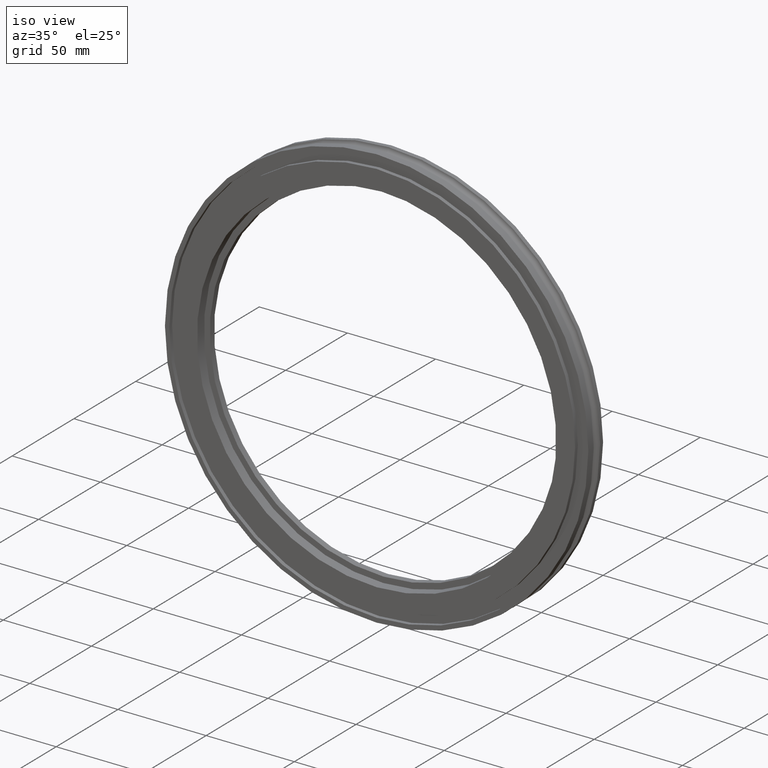
[diagram: clean part render]
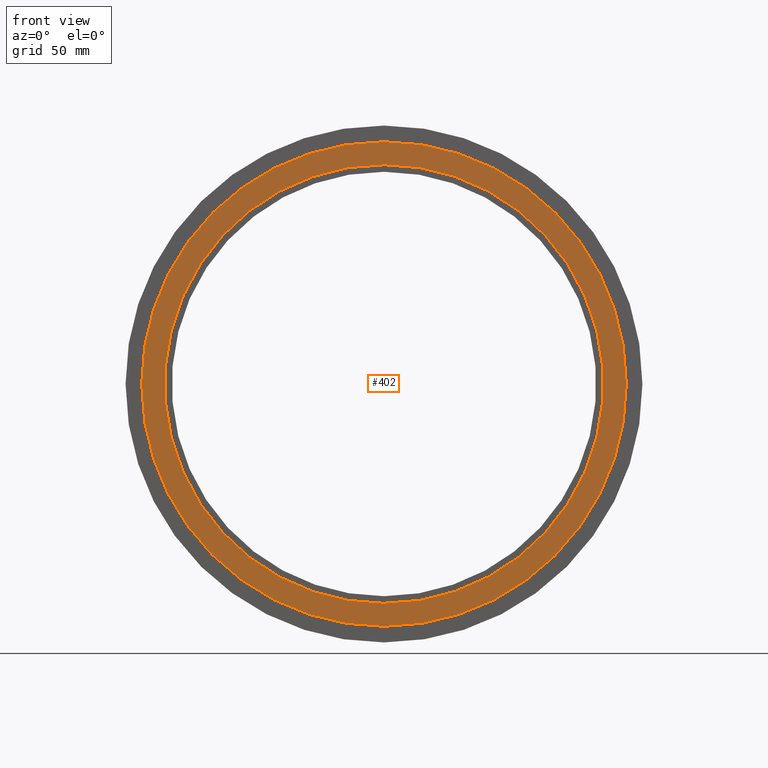
[diagram: tour spotlight — one face highlighted and labeled with its STEP entity id]
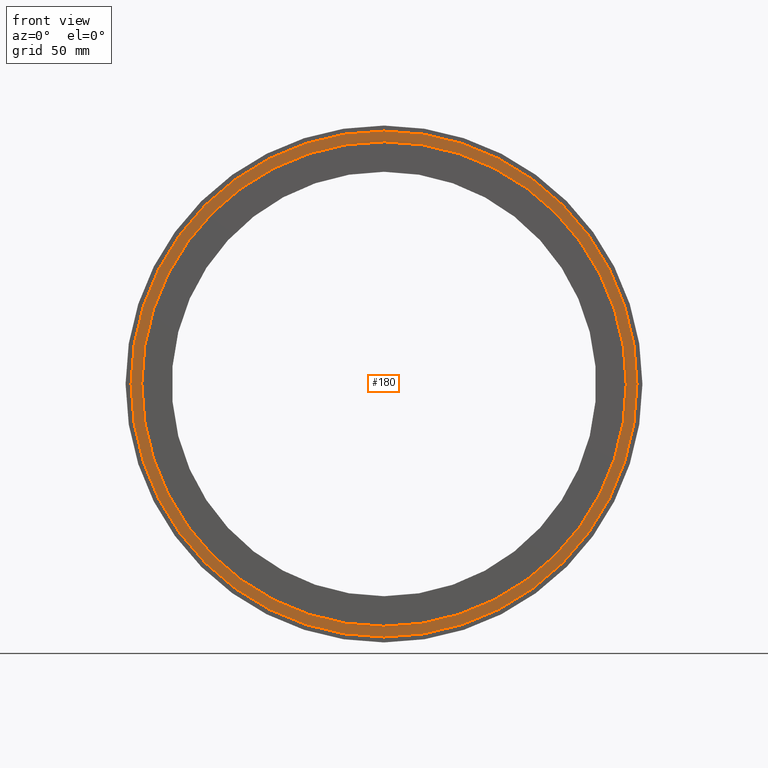
[diagram: tour spotlight — one face highlighted and labeled with its STEP entity id]
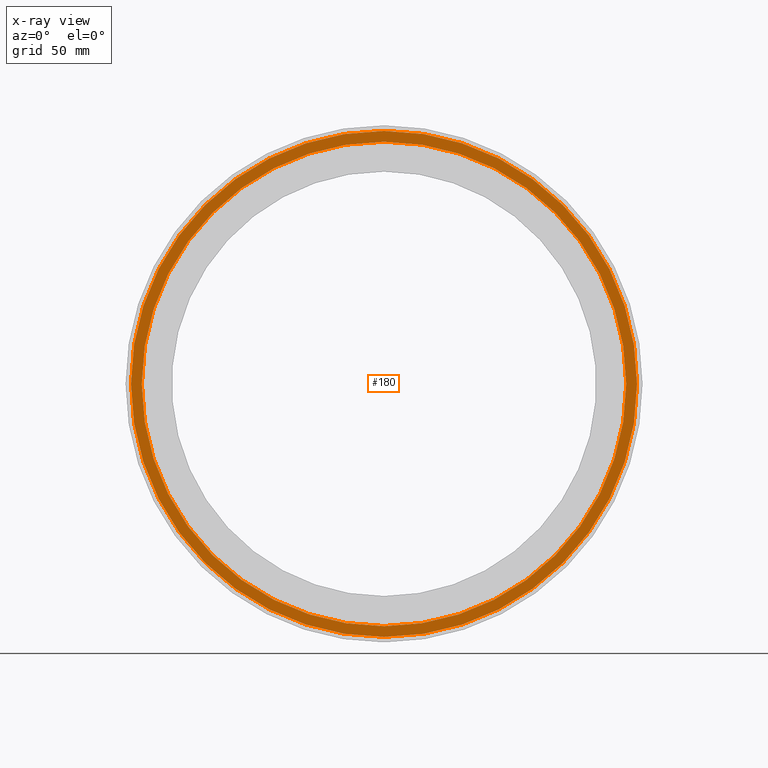
[diagram: x-ray of the same camera — body ghosted, this tour face saturated]
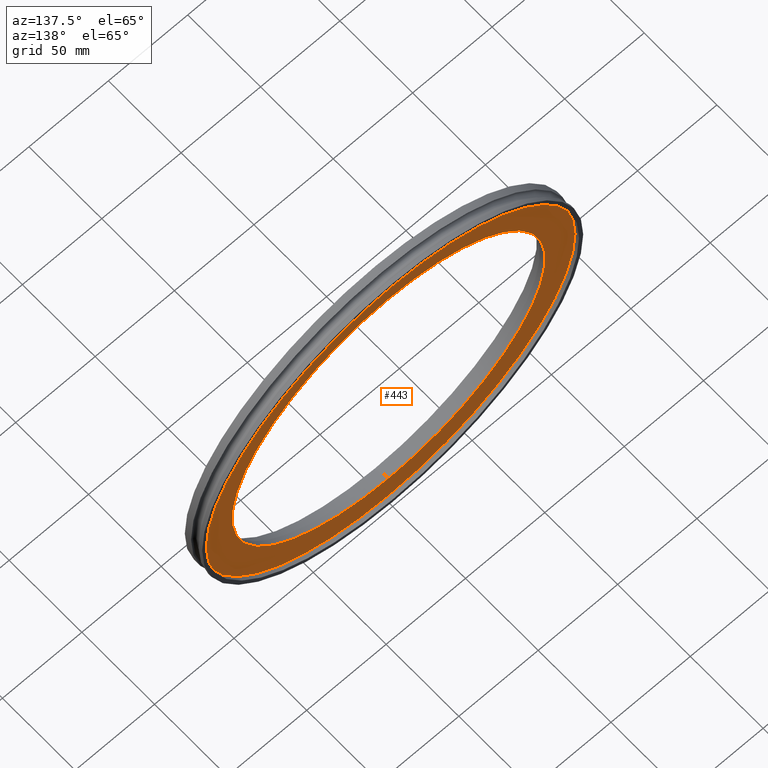
[diagram: tour spotlight — one face highlighted and labeled with its STEP entity id]
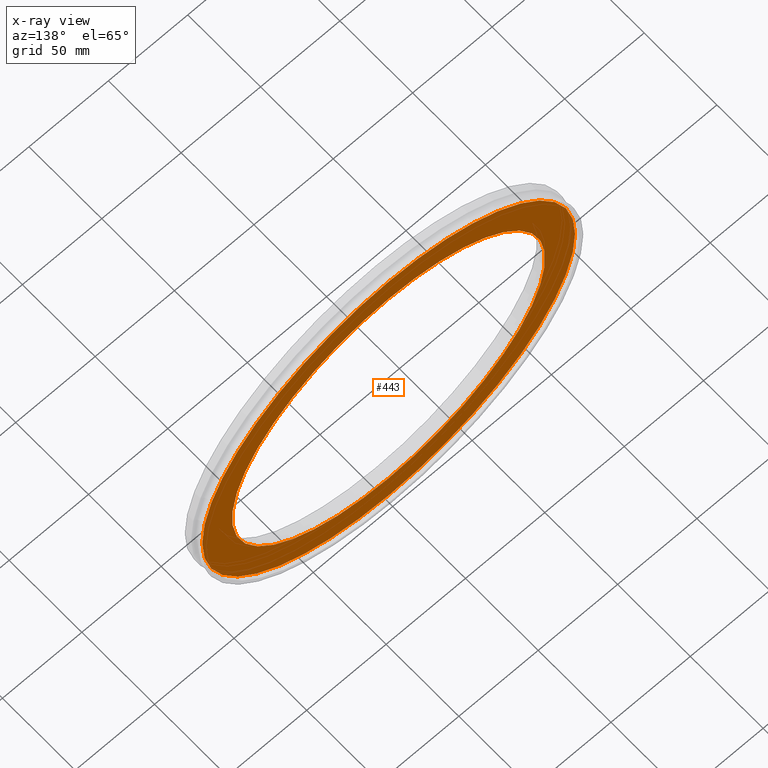
[diagram: x-ray of the same camera — body ghosted, this tour face saturated]
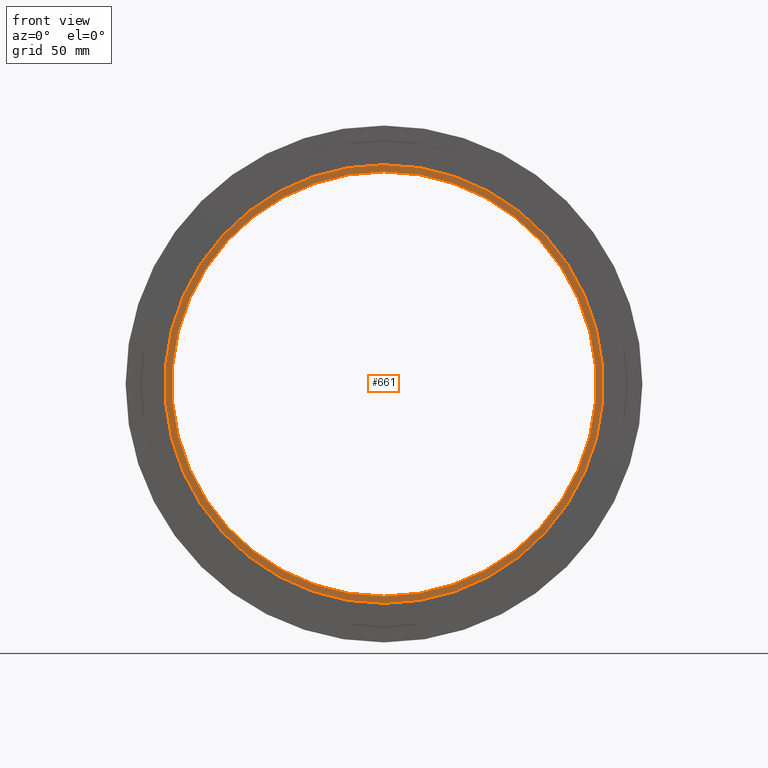
[diagram: tour spotlight — one face highlighted and labeled with its STEP entity id]
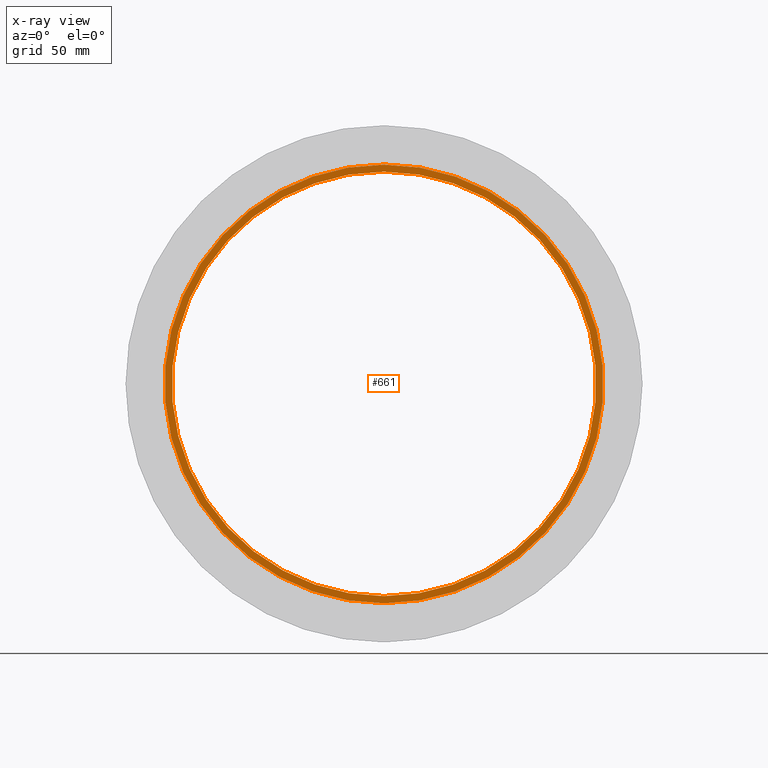
[diagram: x-ray of the same camera — body ghosted, this tour face saturated]
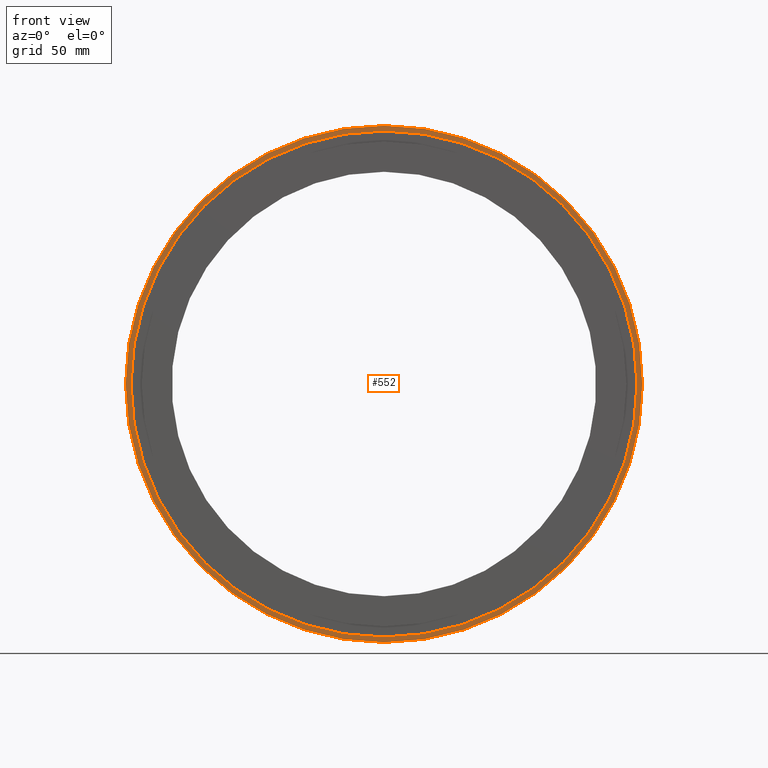
[diagram: tour spotlight — one face highlighted and labeled with its STEP entity id]
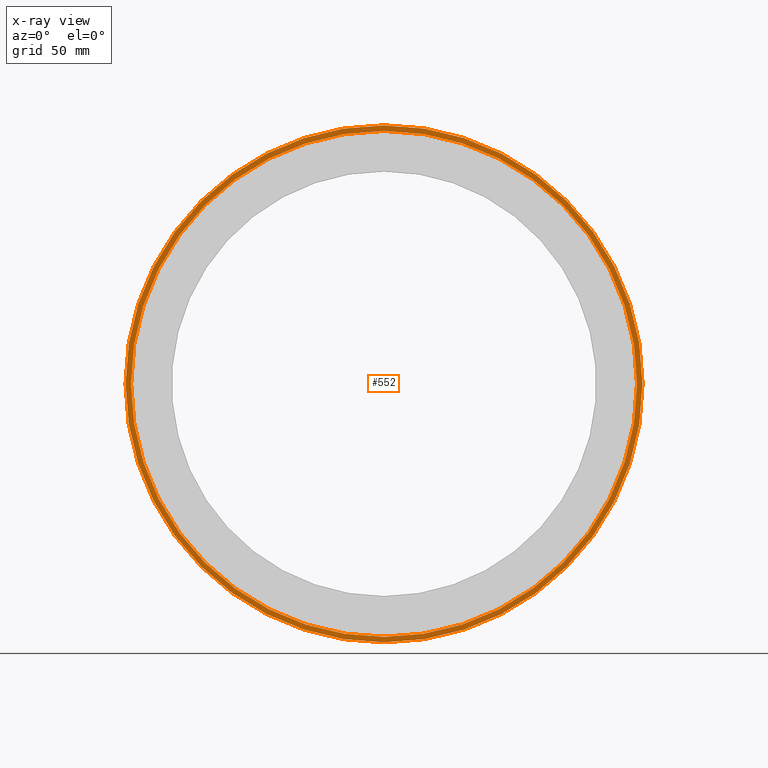
[diagram: x-ray of the same camera — body ghosted, this tour face saturated]
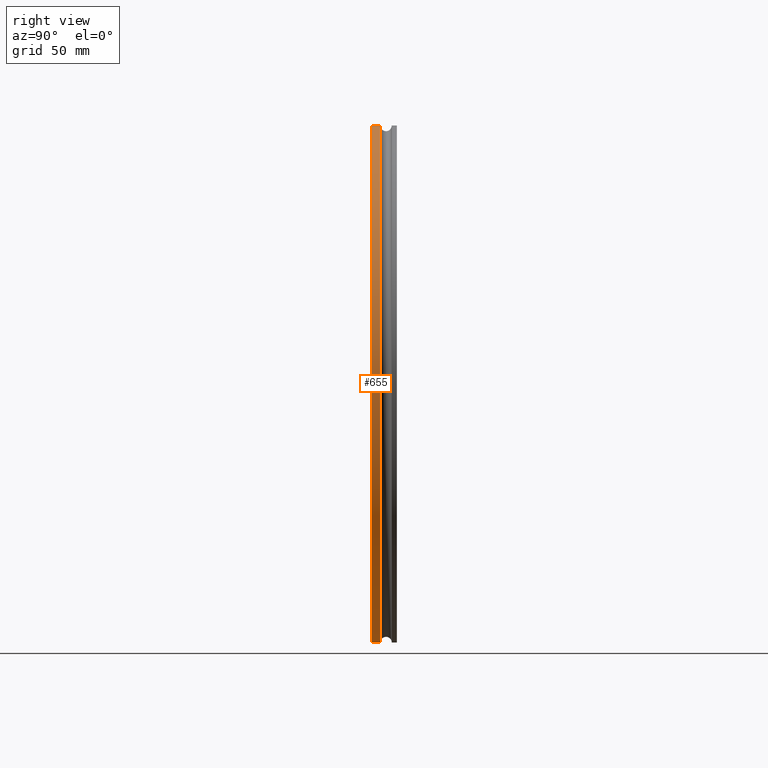
[diagram: tour spotlight — one face highlighted and labeled with its STEP entity id]
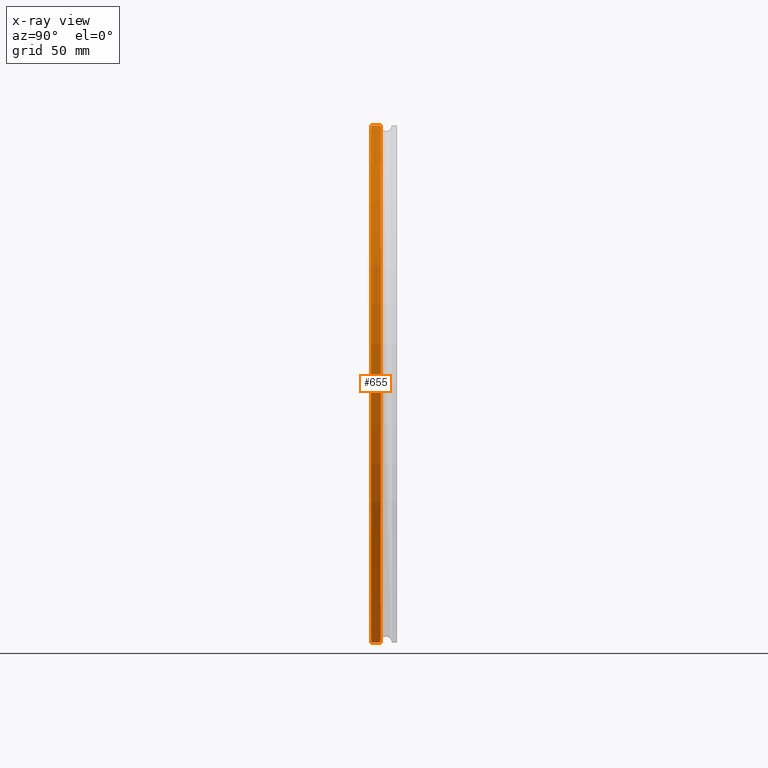
[diagram: x-ray of the same camera — body ghosted, this tour face saturated]
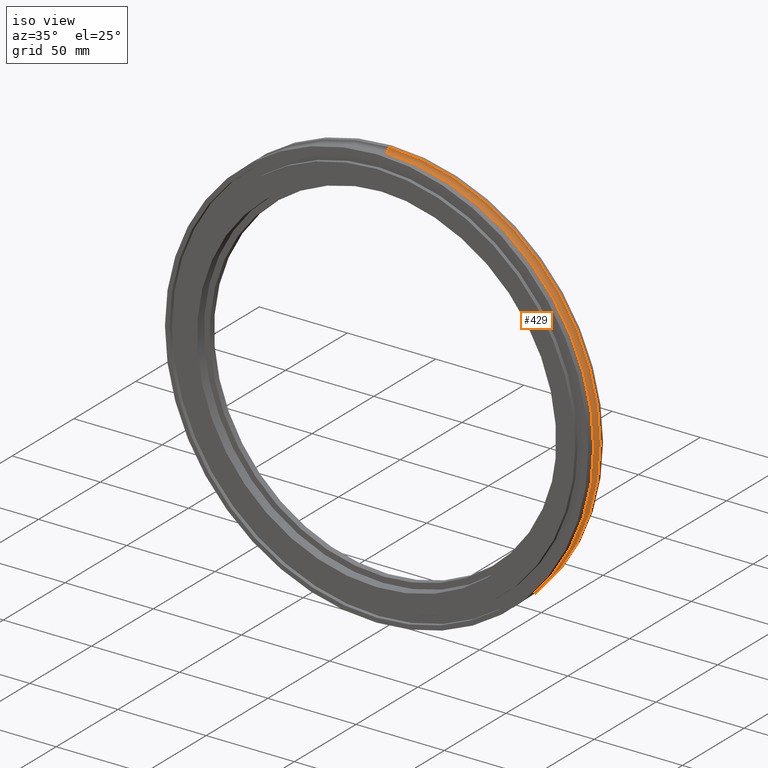
[diagram: tour spotlight — one face highlighted and labeled with its STEP entity id]
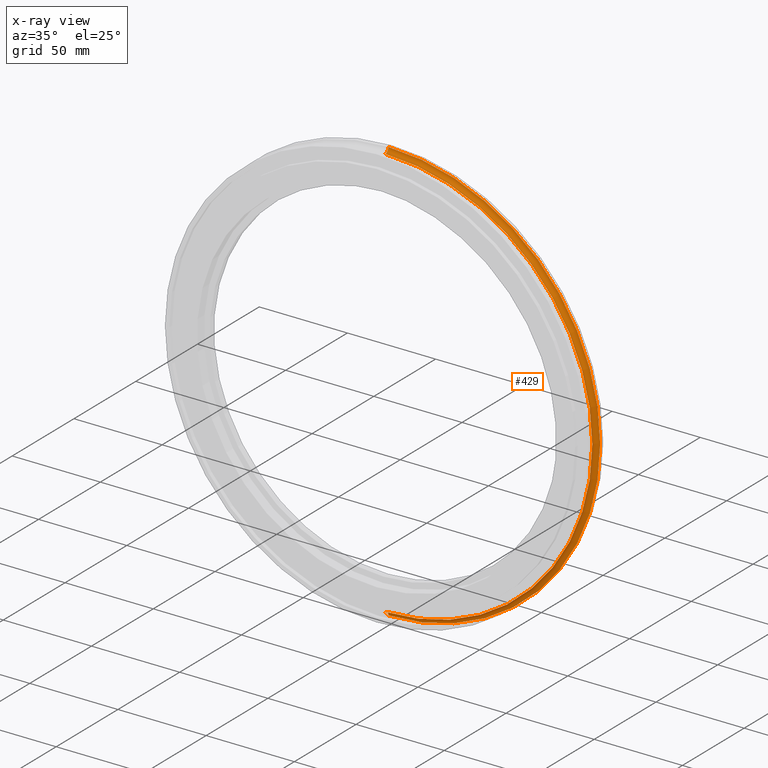
[diagram: x-ray of the same camera — body ghosted, this tour face saturated]
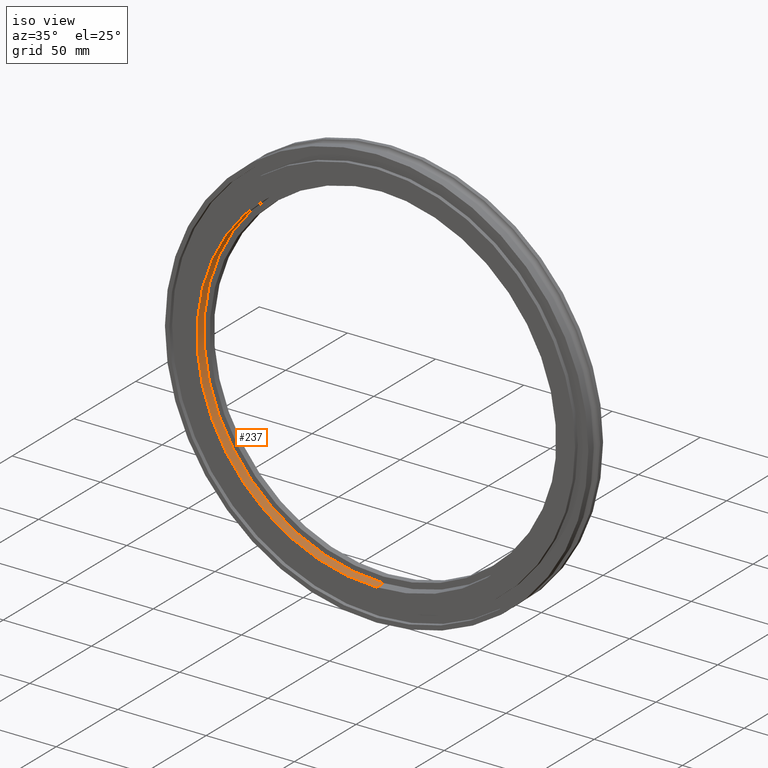
[diagram: tour spotlight — one face highlighted and labeled with its STEP entity id]
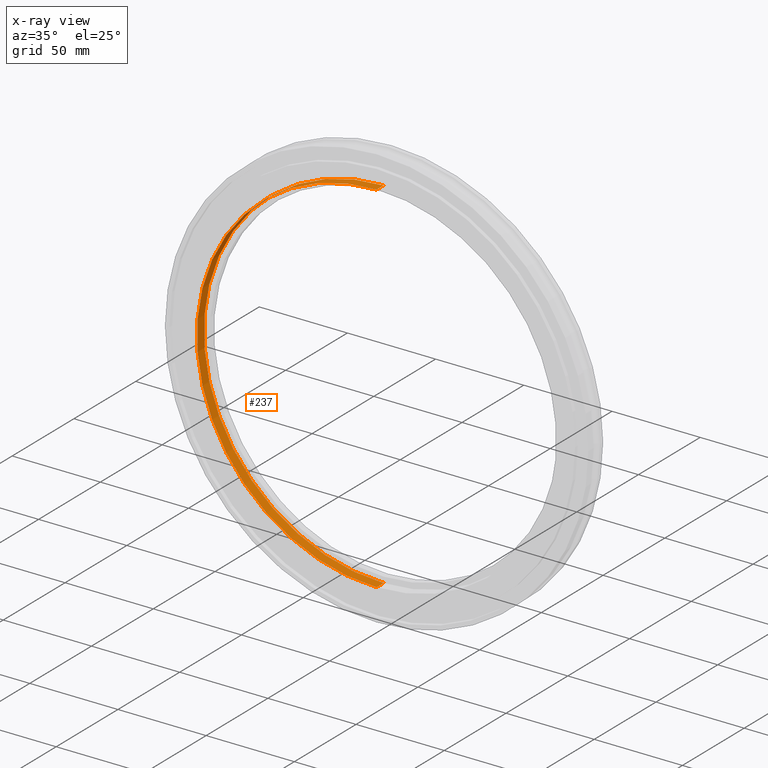
[diagram: x-ray of the same camera — body ghosted, this tour face saturated]
A machine part: a face-by-face anatomy tour. The part has 24 B-rep faces; the first image is the clean iso view, then the 8 largest visible faces are spotlighted one at a time (largest first), each with its STEP entity span.

Face 1 — front view, entity #402. In plain terms, the highlighted planar face has unit normal (-0, 1, 0).
Definition (entity closure, byte-faithful):
#23 = DIRECTION ( 'NONE',  ( -0.000000000000000000, 1.000000000000000000, -0.000000000000000000 ) ) ;
#26 = AXIS2_PLACEMENT_3D ( 'NONE', #515, #23, #560 ) ;
#41 = CIRCLE ( 'NONE', #26, 4.009999999999999787 ) ;
#50 = EDGE_CURVE ( 'NONE', #430, #581, #150, .T. ) ;
#67 = CARTESIAN_POINT ( 'NONE',  ( 0.000000000000000000, -0.4700000000000000289, 0.000000000000000000 ) ) ;
#79 = EDGE_CURVE ( 'NONE', #581, #430, #314, .T. ) ;
#124 = AXIS2_PLACEMENT_3D ( 'NONE', #212, #218, #364 ) ;
#150 = CIRCLE ( 'NONE', #508, 4.429000000000000270 ) ;
#154 = CARTESIAN_POINT ( 'NONE',  ( 5.423960673423627301E-16, -0.4700000000000000289, -4.429000000000000270 ) ) ;
#212 = CARTESIAN_POINT ( 'NONE',  ( 4.429000000000000270, -0.4700000000000000289, 0.000000000000000000 ) ) ;
#218 = DIRECTION ( 'NONE',  ( -0.000000000000000000, 1.000000000000000000, 0.000000000000000000 ) ) ;
#223 = DIRECTION ( 'NONE',  ( -0.000000000000000000, 1.000000000000000000, -0.000000000000000000 ) ) ;
#233 = DIRECTION ( 'NONE',  ( 0.000000000000000000, 0.000000000000000000, 1.000000000000000000 ) ) ;
#242 = CARTESIAN_POINT ( 'NONE',  ( 0.000000000000000000, -0.4700000000000000844, 0.000000000000000000 ) ) ;
#269 = CIRCLE ( 'NONE', #291, 4.009999999999999787 ) ;
#291 = AXIS2_PLACEMENT_3D ( 'NONE', #242, #448, #561 ) ;
#292 = EDGE_CURVE ( 'NONE', #542, #517, #269, .T. ) ;
#314 = CIRCLE ( 'NONE', #580, 4.429000000000000270 ) ;
#359 = ORIENTED_EDGE ( 'NONE', *, *, #292, .T. ) ;
#364 = DIRECTION ( 'NONE',  ( 0.000000000000000000, 0.000000000000000000, 1.000000000000000000 ) ) ;
#368 = ORIENTED_EDGE ( 'NONE', *, *, #79, .F. ) ;
#377 = ORIENTED_EDGE ( 'NONE', *, *, #50, .F. ) ;
#380 = EDGE_LOOP ( 'NONE', ( #377, #368 ) ) ;
#384 = FACE_OUTER_BOUND ( 'NONE', #380, .T. ) ;
#394 = CARTESIAN_POINT ( 'NONE',  ( 4.910833664580886580E-16, -0.4700000000000000844, -4.009999999999999787 ) ) ;
#402 = ADVANCED_FACE ( 'NONE', ( #384, #689 ), #649, .F. ) ;
#419 = CARTESIAN_POINT ( 'NONE',  ( 0.000000000000000000, -0.4700000000000000289, 4.429000000000000270 ) ) ;
#430 = VERTEX_POINT ( 'NONE', #419 ) ;
#431 = DIRECTION ( 'NONE',  ( 0.000000000000000000, 0.000000000000000000, 1.000000000000000000 ) ) ;
#445 = DIRECTION ( 'NONE',  ( -0.000000000000000000, 1.000000000000000000, -0.000000000000000000 ) ) ;
#448 = DIRECTION ( 'NONE',  ( -0.000000000000000000, 1.000000000000000000, -0.000000000000000000 ) ) ;
#488 = CARTESIAN_POINT ( 'NONE',  ( 0.000000000000000000, -0.4700000000000000289, 0.000000000000000000 ) ) ;
#508 = AXIS2_PLACEMENT_3D ( 'NONE', #67, #445, #233 ) ;
#515 = CARTESIAN_POINT ( 'NONE',  ( 0.000000000000000000, -0.4700000000000000844, 0.000000000000000000 ) ) ;
#517 = VERTEX_POINT ( 'NONE', #394 ) ;
#542 = VERTEX_POINT ( 'NONE', #657 ) ;
#560 = DIRECTION ( 'NONE',  ( 0.000000000000000000, 0.000000000000000000, 1.000000000000000000 ) ) ;
#561 = DIRECTION ( 'NONE',  ( 0.000000000000000000, 0.000000000000000000, 1.000000000000000000 ) ) ;
#575 = EDGE_LOOP ( 'NONE', ( #359, #676 ) ) ;
#580 = AXIS2_PLACEMENT_3D ( 'NONE', #488, #223, #431 ) ;
#581 = VERTEX_POINT ( 'NONE', #154 ) ;
#629 = EDGE_CURVE ( 'NONE', #517, #542, #41, .T. ) ;
#649 = PLANE ( 'NONE',  #124 ) ;
#657 = CARTESIAN_POINT ( 'NONE',  ( 0.000000000000000000, -0.4700000000000000844, 4.009999999999999787 ) ) ;
#676 = ORIENTED_EDGE ( 'NONE', *, *, #629, .T. ) ;
#689 = FACE_BOUND ( 'NONE', #575, .T. ) ;

Face 2 — front view, entity #180. An x-ray twin of the same camera follows (body ghosted, this face saturated) — the face is partly hidden behind the body. In plain terms, the highlighted planar face has unit normal (-0, 1, 0).
Definition (entity closure, byte-faithful):
#29 = DIRECTION ( 'NONE',  ( 0.000000000000000000, 0.000000000000000000, 1.000000000000000000 ) ) ;
#35 = FACE_OUTER_BOUND ( 'NONE', #62, .T. ) ;
#37 = CARTESIAN_POINT ( 'NONE',  ( 0.000000000000000000, -0.3850000000000000089, 4.625000000000000000 ) ) ;
#39 = ORIENTED_EDGE ( 'NONE', *, *, #619, .T. ) ;
#48 = CARTESIAN_POINT ( 'NONE',  ( 0.000000000000000000, -0.3850000000000000089, 0.000000000000000000 ) ) ;
#62 = EDGE_LOOP ( 'NONE', ( #272, #215 ) ) ;
#90 = CARTESIAN_POINT ( 'NONE',  ( 0.000000000000000000, -0.3850000000000000089, 0.000000000000000000 ) ) ;
#93 = VERTEX_POINT ( 'NONE', #339 ) ;
#98 = AXIS2_PLACEMENT_3D ( 'NONE', #48, #221, #646 ) ;
#138 = CIRCLE ( 'NONE', #555, 4.429000000000000270 ) ;
#180 = ADVANCED_FACE ( 'NONE', ( #35, #459 ), #308, .F. ) ;
#194 = DIRECTION ( 'NONE',  ( 0.000000000000000000, 0.000000000000000000, 1.000000000000000000 ) ) ;
#199 = CARTESIAN_POINT ( 'NONE',  ( 5.663991446056508491E-16, -0.3850000000000000089, -4.625000000000000000 ) ) ;
#205 = CARTESIAN_POINT ( 'NONE',  ( 0.000000000000000000, -0.3850000000000000089, 0.000000000000000000 ) ) ;
#208 = EDGE_LOOP ( 'NONE', ( #373, #39 ) ) ;
#215 = ORIENTED_EDGE ( 'NONE', *, *, #331, .F. ) ;
#221 = DIRECTION ( 'NONE',  ( -0.000000000000000000, 1.000000000000000000, -0.000000000000000000 ) ) ;
#236 = CIRCLE ( 'NONE', #98, 4.625000000000000000 ) ;
#270 = AXIS2_PLACEMENT_3D ( 'NONE', #205, #564, #347 ) ;
#272 = ORIENTED_EDGE ( 'NONE', *, *, #678, .F. ) ;
#301 = CARTESIAN_POINT ( 'NONE',  ( 0.000000000000000000, -0.3850000000000000089, 0.000000000000000000 ) ) ;
#308 = PLANE ( 'NONE',  #663 ) ;
#331 = EDGE_CURVE ( 'NONE', #589, #597, #236, .T. ) ;
#339 = CARTESIAN_POINT ( 'NONE',  ( 0.000000000000000000, -0.3850000000000000089, 4.429000000000000270 ) ) ;
#342 = CARTESIAN_POINT ( 'NONE',  ( 5.423960673423627301E-16, -0.3850000000000000089, -4.429000000000000270 ) ) ;
#347 = DIRECTION ( 'NONE',  ( 0.000000000000000000, 0.000000000000000000, 1.000000000000000000 ) ) ;
#373 = ORIENTED_EDGE ( 'NONE', *, *, #588, .T. ) ;
#383 = DIRECTION ( 'NONE',  ( 0.000000000000000000, 0.000000000000000000, 1.000000000000000000 ) ) ;
#397 = CIRCLE ( 'NONE', #270, 4.429000000000000270 ) ;
#399 = DIRECTION ( 'NONE',  ( -0.000000000000000000, 1.000000000000000000, 0.000000000000000000 ) ) ;
#415 = CARTESIAN_POINT ( 'NONE',  ( 4.625000000000000000, -0.3850000000000000089, 0.000000000000000000 ) ) ;
#459 = FACE_BOUND ( 'NONE', #208, .T. ) ;
#474 = VERTEX_POINT ( 'NONE', #342 ) ;
#506 = DIRECTION ( 'NONE',  ( -0.000000000000000000, 1.000000000000000000, -0.000000000000000000 ) ) ;
#507 = AXIS2_PLACEMENT_3D ( 'NONE', #301, #506, #383 ) ;
#555 = AXIS2_PLACEMENT_3D ( 'NONE', #90, #573, #29 ) ;
#564 = DIRECTION ( 'NONE',  ( -0.000000000000000000, 1.000000000000000000, -0.000000000000000000 ) ) ;
#573 = DIRECTION ( 'NONE',  ( -0.000000000000000000, 1.000000000000000000, -0.000000000000000000 ) ) ;
#578 = CIRCLE ( 'NONE', #507, 4.625000000000000000 ) ;
#588 = EDGE_CURVE ( 'NONE', #93, #474, #138, .T. ) ;
#589 = VERTEX_POINT ( 'NONE', #199 ) ;
#597 = VERTEX_POINT ( 'NONE', #37 ) ;
#619 = EDGE_CURVE ( 'NONE', #474, #93, #397, .T. ) ;
#646 = DIRECTION ( 'NONE',  ( 0.000000000000000000, 0.000000000000000000, 1.000000000000000000 ) ) ;
#663 = AXIS2_PLACEMENT_3D ( 'NONE', #415, #399, #194 ) ;
#678 = EDGE_CURVE ( 'NONE', #597, #589, #578, .T. ) ;

Face 3 — auxiliary view, entity #443. An x-ray twin of the same camera follows (body ghosted, this face saturated) — the face is partly hidden behind the body. In plain terms, the highlighted planar face has unit normal (0, -1, 0).
Definition (entity closure, byte-faithful):
#25 = VERTEX_POINT ( 'NONE', #437 ) ;
#30 = AXIS2_PLACEMENT_3D ( 'NONE', #697, #273, #480 ) ;
#40 = AXIS2_PLACEMENT_3D ( 'NONE', #135, #336, #603 ) ;
#45 = ORIENTED_EDGE ( 'NONE', *, *, #102, .T. ) ;
#68 = DIRECTION ( 'NONE',  ( 0.000000000000000000, -0.000000000000000000, -1.000000000000000000 ) ) ;
#71 = EDGE_CURVE ( 'NONE', #136, #107, #139, .T. ) ;
#74 = DIRECTION ( 'NONE',  ( 0.000000000000000000, 0.000000000000000000, 1.000000000000000000 ) ) ;
#97 = AXIS2_PLACEMENT_3D ( 'NONE', #549, #382, #74 ) ;
#102 = EDGE_CURVE ( 'NONE', #628, #25, #405, .T. ) ;
#107 = VERTEX_POINT ( 'NONE', #632 ) ;
#114 = AXIS2_PLACEMENT_3D ( 'NONE', #243, #289, #68 ) ;
#135 = CARTESIAN_POINT ( 'NONE',  ( 0.000000000000000000, -0.1100000000000000006, 0.000000000000000000 ) ) ;
#136 = VERTEX_POINT ( 'NONE', #551 ) ;
#139 = CIRCLE ( 'NONE', #30, 3.880000000000000338 ) ;
#163 = FACE_BOUND ( 'NONE', #211, .T. ) ;
#211 = EDGE_LOOP ( 'NONE', ( #548, #688 ) ) ;
#216 = AXIS2_PLACEMENT_3D ( 'NONE', #275, #229, #640 ) ;
#229 = DIRECTION ( 'NONE',  ( -0.000000000000000000, 1.000000000000000000, -0.000000000000000000 ) ) ;
#243 = CARTESIAN_POINT ( 'NONE',  ( 3.880000000000000338, -0.1100000000000000006, 0.000000000000000000 ) ) ;
#273 = DIRECTION ( 'NONE',  ( -0.000000000000000000, 1.000000000000000000, -0.000000000000000000 ) ) ;
#275 = CARTESIAN_POINT ( 'NONE',  ( 0.000000000000000000, -0.1100000000000000006, 0.000000000000000000 ) ) ;
#289 = DIRECTION ( 'NONE',  ( 0.000000000000000000, -1.000000000000000000, 0.000000000000000000 ) ) ;
#304 = CARTESIAN_POINT ( 'NONE',  ( 5.660317505659067549E-16, -0.1100000000000000006, -4.622000000000000774 ) ) ;
#320 = ORIENTED_EDGE ( 'NONE', *, *, #532, .T. ) ;
#336 = DIRECTION ( 'NONE',  ( -0.000000000000000000, 1.000000000000000000, -0.000000000000000000 ) ) ;
#353 = CIRCLE ( 'NONE', #40, 4.622000000000000774 ) ;
#382 = DIRECTION ( 'NONE',  ( -0.000000000000000000, 1.000000000000000000, -0.000000000000000000 ) ) ;
#405 = CIRCLE ( 'NONE', #97, 4.622000000000000774 ) ;
#408 = CIRCLE ( 'NONE', #216, 3.880000000000000338 ) ;
#437 = CARTESIAN_POINT ( 'NONE',  ( 0.000000000000000000, -0.1100000000000000006, 4.622000000000000774 ) ) ;
#439 = EDGE_CURVE ( 'NONE', #107, #136, #408, .T. ) ;
#443 = ADVANCED_FACE ( 'NONE', ( #163, #611 ), #497, .F. ) ;
#480 = DIRECTION ( 'NONE',  ( 0.000000000000000000, 0.000000000000000000, 1.000000000000000000 ) ) ;
#497 = PLANE ( 'NONE',  #114 ) ;
#532 = EDGE_CURVE ( 'NONE', #25, #628, #353, .T. ) ;
#548 = ORIENTED_EDGE ( 'NONE', *, *, #439, .F. ) ;
#549 = CARTESIAN_POINT ( 'NONE',  ( 0.000000000000000000, -0.1100000000000000006, 0.000000000000000000 ) ) ;
#551 = CARTESIAN_POINT ( 'NONE',  ( 4.751629580691730769E-16, -0.1100000000000000006, -3.880000000000000338 ) ) ;
#585 = EDGE_LOOP ( 'NONE', ( #320, #45 ) ) ;
#603 = DIRECTION ( 'NONE',  ( 0.000000000000000000, 0.000000000000000000, 1.000000000000000000 ) ) ;
#611 = FACE_OUTER_BOUND ( 'NONE', #585, .T. ) ;
#628 = VERTEX_POINT ( 'NONE', #304 ) ;
#632 = CARTESIAN_POINT ( 'NONE',  ( 0.000000000000000000, -0.1100000000000000006, 3.880000000000000338 ) ) ;
#640 = DIRECTION ( 'NONE',  ( 0.000000000000000000, 0.000000000000000000, 1.000000000000000000 ) ) ;
#688 = ORIENTED_EDGE ( 'NONE', *, *, #71, .F. ) ;
#697 = CARTESIAN_POINT ( 'NONE',  ( 0.000000000000000000, -0.1100000000000000006, 0.000000000000000000 ) ) ;

Face 4 — front view, entity #661. An x-ray twin of the same camera follows (body ghosted, this face saturated) — the face is partly hidden behind the body. In plain terms, the highlighted planar face has unit normal (-0, 1, 0).
Definition (entity closure, byte-faithful):
#3 = EDGE_CURVE ( 'NONE', #571, #254, #626, .T. ) ;
#11 = DIRECTION ( 'NONE',  ( -0.000000000000000000, 1.000000000000000000, -0.000000000000000000 ) ) ;
#24 = AXIS2_PLACEMENT_3D ( 'NONE', #256, #357, #407 ) ;
#34 = CARTESIAN_POINT ( 'NONE',  ( 4.751629580691730769E-16, -0.2500000000000001110, -3.880000000000000338 ) ) ;
#42 = FACE_OUTER_BOUND ( 'NONE', #533, .T. ) ;
#43 = CIRCLE ( 'NONE', #251, 3.880000000000000338 ) ;
#51 = CARTESIAN_POINT ( 'NONE',  ( 0.000000000000000000, -0.2500000000000001110, 3.880000000000000338 ) ) ;
#69 = EDGE_CURVE ( 'NONE', #642, #365, #43, .T. ) ;
#82 = FACE_BOUND ( 'NONE', #172, .T. ) ;
#112 = CIRCLE ( 'NONE', #24, 3.880000000000000338 ) ;
#113 = AXIS2_PLACEMENT_3D ( 'NONE', #577, #318, #264 ) ;
#126 = AXIS2_PLACEMENT_3D ( 'NONE', #669, #191, #140 ) ;
#131 = DIRECTION ( 'NONE',  ( 0.000000000000000000, 0.000000000000000000, 1.000000000000000000 ) ) ;
#134 = EDGE_CURVE ( 'NONE', #365, #642, #112, .T. ) ;
#140 = DIRECTION ( 'NONE',  ( 0.000000000000000000, 0.000000000000000000, 1.000000000000000000 ) ) ;
#172 = EDGE_LOOP ( 'NONE', ( #265, #329 ) ) ;
#179 = DIRECTION ( 'NONE',  ( -0.000000000000000000, 1.000000000000000000, -0.000000000000000000 ) ) ;
#191 = DIRECTION ( 'NONE',  ( -0.000000000000000000, 1.000000000000000000, 0.000000000000000000 ) ) ;
#207 = CARTESIAN_POINT ( 'NONE',  ( 0.000000000000000000, -0.2500000000000001110, 4.009999999999998899 ) ) ;
#230 = CARTESIAN_POINT ( 'NONE',  ( 0.000000000000000000, -0.2500000000000001110, 0.000000000000000000 ) ) ;
#248 = CIRCLE ( 'NONE', #113, 4.009999999999998899 ) ;
#250 = ORIENTED_EDGE ( 'NONE', *, *, #338, .F. ) ;
#251 = AXIS2_PLACEMENT_3D ( 'NONE', #230, #11, #598 ) ;
#254 = VERTEX_POINT ( 'NONE', #207 ) ;
#256 = CARTESIAN_POINT ( 'NONE',  ( 0.000000000000000000, -0.2500000000000001110, 0.000000000000000000 ) ) ;
#264 = DIRECTION ( 'NONE',  ( 0.000000000000000000, 0.000000000000000000, 1.000000000000000000 ) ) ;
#265 = ORIENTED_EDGE ( 'NONE', *, *, #134, .T. ) ;
#298 = CARTESIAN_POINT ( 'NONE',  ( 4.910833664580885594E-16, -0.2500000000000001110, -4.009999999999998899 ) ) ;
#318 = DIRECTION ( 'NONE',  ( -0.000000000000000000, 1.000000000000000000, -0.000000000000000000 ) ) ;
#329 = ORIENTED_EDGE ( 'NONE', *, *, #69, .T. ) ;
#338 = EDGE_CURVE ( 'NONE', #254, #571, #248, .T. ) ;
#357 = DIRECTION ( 'NONE',  ( -0.000000000000000000, 1.000000000000000000, -0.000000000000000000 ) ) ;
#365 = VERTEX_POINT ( 'NONE', #51 ) ;
#407 = DIRECTION ( 'NONE',  ( 0.000000000000000000, 0.000000000000000000, 1.000000000000000000 ) ) ;
#450 = PLANE ( 'NONE',  #126 ) ;
#479 = ORIENTED_EDGE ( 'NONE', *, *, #3, .F. ) ;
#525 = AXIS2_PLACEMENT_3D ( 'NONE', #637, #179, #131 ) ;
#533 = EDGE_LOOP ( 'NONE', ( #250, #479 ) ) ;
#571 = VERTEX_POINT ( 'NONE', #298 ) ;
#577 = CARTESIAN_POINT ( 'NONE',  ( 0.000000000000000000, -0.2500000000000001110, 0.000000000000000000 ) ) ;
#598 = DIRECTION ( 'NONE',  ( 0.000000000000000000, 0.000000000000000000, 1.000000000000000000 ) ) ;
#626 = CIRCLE ( 'NONE', #525, 4.009999999999998899 ) ;
#637 = CARTESIAN_POINT ( 'NONE',  ( 0.000000000000000000, -0.2500000000000001110, 0.000000000000000000 ) ) ;
#642 = VERTEX_POINT ( 'NONE', #34 ) ;
#661 = ADVANCED_FACE ( 'NONE', ( #42, #82 ), #450, .F. ) ;
#669 = CARTESIAN_POINT ( 'NONE',  ( 4.009999999999998899, -0.2500000000000001110, 0.000000000000000000 ) ) ;

Face 5 — front view, entity #552. An x-ray twin of the same camera follows (body ghosted, this face saturated) — the face is partly hidden behind the body. In plain terms, the highlighted planar face has unit normal (-0, 1, 0).
Definition (entity closure, byte-faithful):
#44 = DIRECTION ( 'NONE',  ( -0.000000000000000000, 1.000000000000000000, -0.000000000000000000 ) ) ;
#89 = DIRECTION ( 'NONE',  ( -0.000000000000000000, 1.000000000000000000, -0.000000000000000000 ) ) ;
#95 = CARTESIAN_POINT ( 'NONE',  ( 5.663991446056508491E-16, -0.4699999999999999734, -4.625000000000000000 ) ) ;
#130 = EDGE_LOOP ( 'NONE', ( #528, #562 ) ) ;
#142 = EDGE_CURVE ( 'NONE', #323, #487, #604, .T. ) ;
#157 = EDGE_CURVE ( 'NONE', #189, #374, #200, .T. ) ;
#175 = CARTESIAN_POINT ( 'NONE',  ( 0.000000000000000000, -0.4699999999999999734, 4.625000000000000000 ) ) ;
#183 = AXIS2_PLACEMENT_3D ( 'NONE', #302, #89, #675 ) ;
#186 = CARTESIAN_POINT ( 'NONE',  ( 5.786456125971243047E-16, -0.4699999999999998623, -4.724999999999999645 ) ) ;
#189 = VERTEX_POINT ( 'NONE', #95 ) ;
#192 = EDGE_CURVE ( 'NONE', #487, #323, #576, .T. ) ;
#200 = CIRCLE ( 'NONE', #350, 4.625000000000000000 ) ;
#219 = EDGE_LOOP ( 'NONE', ( #400, #529 ) ) ;
#227 = AXIS2_PLACEMENT_3D ( 'NONE', #309, #252, #255 ) ;
#252 = DIRECTION ( 'NONE',  ( -0.000000000000000000, 1.000000000000000000, 0.000000000000000000 ) ) ;
#255 = DIRECTION ( 'NONE',  ( 0.000000000000000000, 0.000000000000000000, 1.000000000000000000 ) ) ;
#281 = AXIS2_PLACEMENT_3D ( 'NONE', #310, #567, #348 ) ;
#302 = CARTESIAN_POINT ( 'NONE',  ( 0.000000000000000000, -0.4699999999999998623, 0.000000000000000000 ) ) ;
#309 = CARTESIAN_POINT ( 'NONE',  ( 4.724999999999999645, -0.4699999999999999178, 0.000000000000000000 ) ) ;
#310 = CARTESIAN_POINT ( 'NONE',  ( 0.000000000000000000, -0.4699999999999998623, 0.000000000000000000 ) ) ;
#322 = DIRECTION ( 'NONE',  ( -0.000000000000000000, 1.000000000000000000, -0.000000000000000000 ) ) ;
#323 = VERTEX_POINT ( 'NONE', #424 ) ;
#335 = AXIS2_PLACEMENT_3D ( 'NONE', #535, #322, #473 ) ;
#348 = DIRECTION ( 'NONE',  ( 0.000000000000000000, 0.000000000000000000, 1.000000000000000000 ) ) ;
#350 = AXIS2_PLACEMENT_3D ( 'NONE', #352, #44, #456 ) ;
#352 = CARTESIAN_POINT ( 'NONE',  ( 0.000000000000000000, -0.4699999999999999734, 0.000000000000000000 ) ) ;
#374 = VERTEX_POINT ( 'NONE', #175 ) ;
#387 = FACE_OUTER_BOUND ( 'NONE', #130, .T. ) ;
#395 = EDGE_CURVE ( 'NONE', #374, #189, #638, .T. ) ;
#400 = ORIENTED_EDGE ( 'NONE', *, *, #395, .T. ) ;
#424 = CARTESIAN_POINT ( 'NONE',  ( 0.000000000000000000, -0.4699999999999998623, 4.724999999999999645 ) ) ;
#456 = DIRECTION ( 'NONE',  ( 0.000000000000000000, 0.000000000000000000, 1.000000000000000000 ) ) ;
#473 = DIRECTION ( 'NONE',  ( 0.000000000000000000, 0.000000000000000000, 1.000000000000000000 ) ) ;
#487 = VERTEX_POINT ( 'NONE', #186 ) ;
#528 = ORIENTED_EDGE ( 'NONE', *, *, #142, .F. ) ;
#529 = ORIENTED_EDGE ( 'NONE', *, *, #157, .T. ) ;
#535 = CARTESIAN_POINT ( 'NONE',  ( 0.000000000000000000, -0.4699999999999999734, 0.000000000000000000 ) ) ;
#544 = PLANE ( 'NONE',  #227 ) ;
#552 = ADVANCED_FACE ( 'NONE', ( #387, #600 ), #544, .F. ) ;
#562 = ORIENTED_EDGE ( 'NONE', *, *, #192, .F. ) ;
#567 = DIRECTION ( 'NONE',  ( -0.000000000000000000, 1.000000000000000000, -0.000000000000000000 ) ) ;
#576 = CIRCLE ( 'NONE', #281, 4.724999999999999645 ) ;
#600 = FACE_BOUND ( 'NONE', #219, .T. ) ;
#604 = CIRCLE ( 'NONE', #183, 4.724999999999999645 ) ;
#638 = CIRCLE ( 'NONE', #335, 4.625000000000000000 ) ;
#675 = DIRECTION ( 'NONE',  ( 0.000000000000000000, 0.000000000000000000, 1.000000000000000000 ) ) ;

Face 6 — right view, entity #655. An x-ray twin of the same camera follows (body ghosted, this face saturated) — the face is partly hidden behind the body. In plain terms, the highlighted cylindrical surface (partial cylindrical patch) has radius 120.015 mm, axis along (-0, 1, -0).
Definition (entity closure, byte-faithful):
#14 = EDGE_CURVE ( 'NONE', #276, #164, #326, .T. ) ;
#61 = CARTESIAN_POINT ( 'NONE',  ( 5.786456125971243047E-16, 0.000000000000000000, -4.724999999999999645 ) ) ;
#89 = DIRECTION ( 'NONE',  ( -0.000000000000000000, 1.000000000000000000, -0.000000000000000000 ) ) ;
#91 = CARTESIAN_POINT ( 'NONE',  ( 5.786456125971244033E-16, -0.2999999999999999889, -4.725000000000000533 ) ) ;
#94 = DIRECTION ( 'NONE',  ( 0.000000000000000000, 0.000000000000000000, 1.000000000000000000 ) ) ;
#96 = ORIENTED_EDGE ( 'NONE', *, *, #388, .T. ) ;
#105 = ORIENTED_EDGE ( 'NONE', *, *, #14, .F. ) ;
#141 = DIRECTION ( 'NONE',  ( -0.000000000000000000, 1.000000000000000000, -0.000000000000000000 ) ) ;
#142 = EDGE_CURVE ( 'NONE', #323, #487, #604, .T. ) ;
#151 = LINE ( 'NONE', #463, #690 ) ;
#164 = VERTEX_POINT ( 'NONE', #91 ) ;
#183 = AXIS2_PLACEMENT_3D ( 'NONE', #302, #89, #675 ) ;
#186 = CARTESIAN_POINT ( 'NONE',  ( 5.786456125971243047E-16, -0.4699999999999998623, -4.724999999999999645 ) ) ;
#196 = DIRECTION ( 'NONE',  ( -0.000000000000000000, 1.000000000000000000, -0.000000000000000000 ) ) ;
#271 = DIRECTION ( 'NONE',  ( -0.000000000000000000, 1.000000000000000000, -0.000000000000000000 ) ) ;
#276 = VERTEX_POINT ( 'NONE', #682 ) ;
#277 = CARTESIAN_POINT ( 'NONE',  ( 0.000000000000000000, -0.2999999999999999889, 0.000000000000000000 ) ) ;
#302 = CARTESIAN_POINT ( 'NONE',  ( 0.000000000000000000, -0.4699999999999998623, 0.000000000000000000 ) ) ;
#323 = VERTEX_POINT ( 'NONE', #424 ) ;
#326 = CIRCLE ( 'NONE', #566, 4.724999999999999645 ) ;
#354 = AXIS2_PLACEMENT_3D ( 'NONE', #631, #141, #94 ) ;
#388 = EDGE_CURVE ( 'NONE', #487, #164, #586, .T. ) ;
#411 = CYLINDRICAL_SURFACE ( 'NONE', #354, 4.724999999999999645 ) ;
#424 = CARTESIAN_POINT ( 'NONE',  ( 0.000000000000000000, -0.4699999999999998623, 4.724999999999999645 ) ) ;
#463 = CARTESIAN_POINT ( 'NONE',  ( 0.000000000000000000, 0.000000000000000000, 4.724999999999999645 ) ) ;
#487 = VERTEX_POINT ( 'NONE', #186 ) ;
#510 = ORIENTED_EDGE ( 'NONE', *, *, #142, .T. ) ;
#566 = AXIS2_PLACEMENT_3D ( 'NONE', #277, #594, #606 ) ;
#579 = ORIENTED_EDGE ( 'NONE', *, *, #583, .F. ) ;
#583 = EDGE_CURVE ( 'NONE', #323, #276, #151, .T. ) ;
#586 = LINE ( 'NONE', #61, #670 ) ;
#594 = DIRECTION ( 'NONE',  ( -0.000000000000000000, 1.000000000000000000, -0.000000000000000000 ) ) ;
#604 = CIRCLE ( 'NONE', #183, 4.724999999999999645 ) ;
#606 = DIRECTION ( 'NONE',  ( 0.000000000000000000, 0.000000000000000000, 1.000000000000000000 ) ) ;
#624 = EDGE_LOOP ( 'NONE', ( #510, #96, #105, #579 ) ) ;
#631 = CARTESIAN_POINT ( 'NONE',  ( 0.000000000000000000, 0.000000000000000000, 0.000000000000000000 ) ) ;
#655 = ADVANCED_FACE ( 'NONE', ( #681 ), #411, .T. ) ;
#670 = VECTOR ( 'NONE', #271, 39.37007874015748143 ) ;
#675 = DIRECTION ( 'NONE',  ( 0.000000000000000000, 0.000000000000000000, 1.000000000000000000 ) ) ;
#681 = FACE_OUTER_BOUND ( 'NONE', #624, .T. ) ;
#682 = CARTESIAN_POINT ( 'NONE',  ( 0.000000000000000000, -0.2999999999999999889, 4.724999999999999645 ) ) ;
#690 = VECTOR ( 'NONE', #196, 39.37007874015748143 ) ;

Face 7 — iso view, entity #429. An x-ray twin of the same camera follows (body ghosted, this face saturated) — the face is partly hidden behind the body. In plain terms, the highlighted toroidal blend (fillet) surface has major radius 120.015 mm and minor (blend) radius 2.6162 mm.
Definition (entity closure, byte-faithful):
#18 = TOROIDAL_SURFACE ( 'NONE', #505, 4.724999999999999645, 0.1029999999999999943 ) ;
#55 = FACE_OUTER_BOUND ( 'NONE', #686, .T. ) ;
#57 = VERTEX_POINT ( 'NONE', #280 ) ;
#58 = EDGE_CURVE ( 'NONE', #650, #531, #241, .T. ) ;
#66 = EDGE_CURVE ( 'NONE', #531, #198, #204, .T. ) ;
#123 = DIRECTION ( 'NONE',  ( -1.000000000000000000, 0.000000000000000000, 0.000000000000000000 ) ) ;
#148 = CIRCLE ( 'NONE', #664, 4.621999999999999886 ) ;
#181 = CARTESIAN_POINT ( 'NONE',  ( 0.000000000000000000, -0.1970000000000000084, 0.000000000000000000 ) ) ;
#188 = DIRECTION ( 'NONE',  ( 0.000000000000000000, 0.000000000000000000, 1.000000000000000000 ) ) ;
#198 = VERTEX_POINT ( 'NONE', #258 ) ;
#204 = CIRCLE ( 'NONE', #296, 0.1029999999999999666 ) ;
#226 = CARTESIAN_POINT ( 'NONE',  ( 0.000000000000000000, -0.09400000000000001410, 0.000000000000000000 ) ) ;
#241 = CIRCLE ( 'NONE', #410, 4.724999999999998757 ) ;
#247 = CARTESIAN_POINT ( 'NONE',  ( 0.000000000000000000, -0.09400000000000001410, 4.724999999999999645 ) ) ;
#258 = CARTESIAN_POINT ( 'NONE',  ( 5.660317505659065576E-16, -0.1970000000000000084, -4.621999999999999886 ) ) ;
#280 = CARTESIAN_POINT ( 'NONE',  ( 0.000000000000000000, -0.1970000000000000084, 4.621999999999999886 ) ) ;
#296 = AXIS2_PLACEMENT_3D ( 'NONE', #610, #543, #442 ) ;
#334 = CARTESIAN_POINT ( 'NONE',  ( 5.786456125971243047E-16, -0.09400000000000001410, -4.724999999999999645 ) ) ;
#363 = ORIENTED_EDGE ( 'NONE', *, *, #511, .T. ) ;
#376 = ORIENTED_EDGE ( 'NONE', *, *, #492, .T. ) ;
#386 = DIRECTION ( 'NONE',  ( -0.000000000000000000, 1.000000000000000000, -0.000000000000000000 ) ) ;
#393 = DIRECTION ( 'NONE',  ( 0.000000000000000000, 0.000000000000000000, 1.000000000000000000 ) ) ;
#410 = AXIS2_PLACEMENT_3D ( 'NONE', #226, #386, #658 ) ;
#416 = ORIENTED_EDGE ( 'NONE', *, *, #66, .F. ) ;
#429 = ADVANCED_FACE ( 'NONE', ( #55 ), #18, .F. ) ;
#440 = CARTESIAN_POINT ( 'NONE',  ( 0.000000000000000000, -0.1970000000000000084, 4.724999999999999645 ) ) ;
#442 = DIRECTION ( 'NONE',  ( 1.224646799147350989E-16, 0.000000000000000000, -1.000000000000000000 ) ) ;
#444 = DIRECTION ( 'NONE',  ( -0.000000000000000000, 1.000000000000000000, -0.000000000000000000 ) ) ;
#452 = AXIS2_PLACEMENT_3D ( 'NONE', #440, #123, #393 ) ;
#464 = CIRCLE ( 'NONE', #452, 0.1029999999999999666 ) ;
#481 = DIRECTION ( 'NONE',  ( -0.000000000000000000, 1.000000000000000000, -0.000000000000000000 ) ) ;
#492 = EDGE_CURVE ( 'NONE', #650, #57, #464, .T. ) ;
#505 = AXIS2_PLACEMENT_3D ( 'NONE', #591, #481, #596 ) ;
#511 = EDGE_CURVE ( 'NONE', #57, #198, #148, .T. ) ;
#531 = VERTEX_POINT ( 'NONE', #334 ) ;
#543 = DIRECTION ( 'NONE',  ( 1.000000000000000000, 0.000000000000000000, 1.224646799147353207E-16 ) ) ;
#559 = ORIENTED_EDGE ( 'NONE', *, *, #58, .F. ) ;
#591 = CARTESIAN_POINT ( 'NONE',  ( 0.000000000000000000, -0.1970000000000000084, 0.000000000000000000 ) ) ;
#596 = DIRECTION ( 'NONE',  ( 0.000000000000000000, 0.000000000000000000, 1.000000000000000000 ) ) ;
#610 = CARTESIAN_POINT ( 'NONE',  ( 5.786456125971243047E-16, -0.1970000000000000084, -4.724999999999999645 ) ) ;
#650 = VERTEX_POINT ( 'NONE', #247 ) ;
#658 = DIRECTION ( 'NONE',  ( 0.000000000000000000, 0.000000000000000000, 1.000000000000000000 ) ) ;
#664 = AXIS2_PLACEMENT_3D ( 'NONE', #181, #444, #188 ) ;
#686 = EDGE_LOOP ( 'NONE', ( #376, #363, #416, #559 ) ) ;

Face 8 — iso view, entity #237. An x-ray twin of the same camera follows (body ghosted, this face saturated) — the face is partly hidden behind the body. In plain terms, the highlighted cylindrical surface (partial cylindrical patch) has radius 101.854 mm, axis along (-0, 1, -0).
Definition (entity closure, byte-faithful):
#3 = EDGE_CURVE ( 'NONE', #571, #254, #626, .T. ) ;
#4 = EDGE_LOOP ( 'NONE', ( #165, #441, #622, #643 ) ) ;
#23 = DIRECTION ( 'NONE',  ( -0.000000000000000000, 1.000000000000000000, -0.000000000000000000 ) ) ;
#26 = AXIS2_PLACEMENT_3D ( 'NONE', #515, #23, #560 ) ;
#41 = CIRCLE ( 'NONE', #26, 4.009999999999999787 ) ;
#86 = AXIS2_PLACEMENT_3D ( 'NONE', #197, #635, #152 ) ;
#103 = CARTESIAN_POINT ( 'NONE',  ( 4.910833664580885594E-16, 0.000000000000000000, -4.009999999999998899 ) ) ;
#115 = DIRECTION ( 'NONE',  ( -0.000000000000000000, 1.000000000000000000, -0.000000000000000000 ) ) ;
#131 = DIRECTION ( 'NONE',  ( 0.000000000000000000, 0.000000000000000000, 1.000000000000000000 ) ) ;
#152 = DIRECTION ( 'NONE',  ( 0.000000000000000000, 0.000000000000000000, 1.000000000000000000 ) ) ;
#165 = ORIENTED_EDGE ( 'NONE', *, *, #629, .F. ) ;
#179 = DIRECTION ( 'NONE',  ( -0.000000000000000000, 1.000000000000000000, -0.000000000000000000 ) ) ;
#197 = CARTESIAN_POINT ( 'NONE',  ( 0.000000000000000000, 0.000000000000000000, 0.000000000000000000 ) ) ;
#207 = CARTESIAN_POINT ( 'NONE',  ( 0.000000000000000000, -0.2500000000000001110, 4.009999999999998899 ) ) ;
#214 = VECTOR ( 'NONE', #685, 39.37007874015748143 ) ;
#237 = ADVANCED_FACE ( 'NONE', ( #509 ), #667, .F. ) ;
#254 = VERTEX_POINT ( 'NONE', #207 ) ;
#279 = EDGE_CURVE ( 'NONE', #542, #254, #412, .T. ) ;
#298 = CARTESIAN_POINT ( 'NONE',  ( 4.910833664580885594E-16, -0.2500000000000001110, -4.009999999999998899 ) ) ;
#370 = EDGE_CURVE ( 'NONE', #517, #571, #471, .T. ) ;
#394 = CARTESIAN_POINT ( 'NONE',  ( 4.910833664580886580E-16, -0.4700000000000000844, -4.009999999999999787 ) ) ;
#412 = LINE ( 'NONE', #574, #214 ) ;
#441 = ORIENTED_EDGE ( 'NONE', *, *, #370, .T. ) ;
#471 = LINE ( 'NONE', #103, #519 ) ;
#509 = FACE_OUTER_BOUND ( 'NONE', #4, .T. ) ;
#515 = CARTESIAN_POINT ( 'NONE',  ( 0.000000000000000000, -0.4700000000000000844, 0.000000000000000000 ) ) ;
#517 = VERTEX_POINT ( 'NONE', #394 ) ;
#519 = VECTOR ( 'NONE', #115, 39.37007874015748143 ) ;
#525 = AXIS2_PLACEMENT_3D ( 'NONE', #637, #179, #131 ) ;
#542 = VERTEX_POINT ( 'NONE', #657 ) ;
#560 = DIRECTION ( 'NONE',  ( 0.000000000000000000, 0.000000000000000000, 1.000000000000000000 ) ) ;
#571 = VERTEX_POINT ( 'NONE', #298 ) ;
#574 = CARTESIAN_POINT ( 'NONE',  ( 0.000000000000000000, 0.000000000000000000, 4.009999999999998899 ) ) ;
#622 = ORIENTED_EDGE ( 'NONE', *, *, #3, .T. ) ;
#626 = CIRCLE ( 'NONE', #525, 4.009999999999998899 ) ;
#629 = EDGE_CURVE ( 'NONE', #517, #542, #41, .T. ) ;
#635 = DIRECTION ( 'NONE',  ( -0.000000000000000000, 1.000000000000000000, -0.000000000000000000 ) ) ;
#637 = CARTESIAN_POINT ( 'NONE',  ( 0.000000000000000000, -0.2500000000000001110, 0.000000000000000000 ) ) ;
#643 = ORIENTED_EDGE ( 'NONE', *, *, #279, .F. ) ;
#657 = CARTESIAN_POINT ( 'NONE',  ( 0.000000000000000000, -0.4700000000000000844, 4.009999999999999787 ) ) ;
#667 = CYLINDRICAL_SURFACE ( 'NONE', #86, 4.009999999999998899 ) ;
#685 = DIRECTION ( 'NONE',  ( -0.000000000000000000, 1.000000000000000000, -0.000000000000000000 ) ) ;